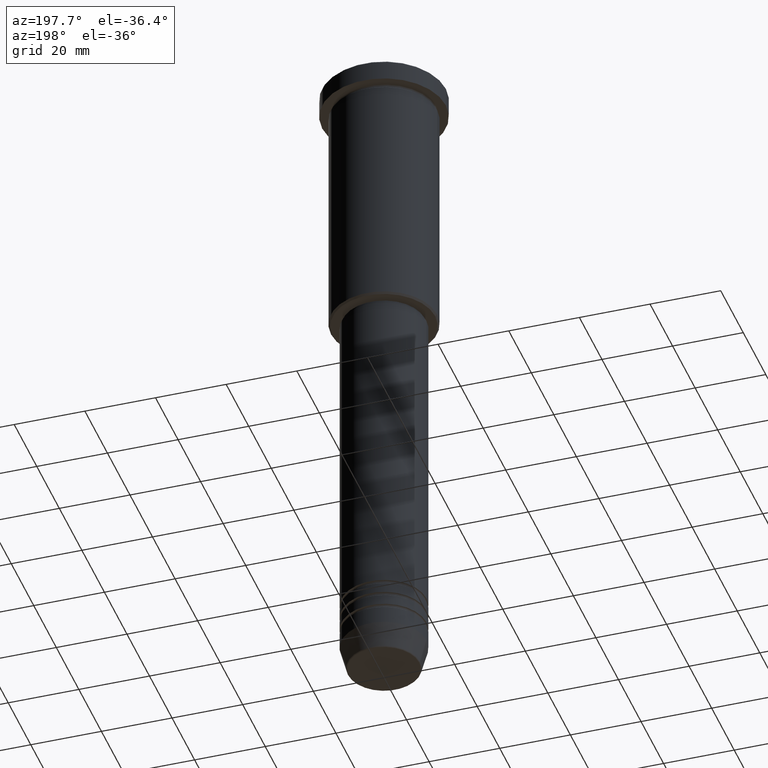
[diagram: clean part render]
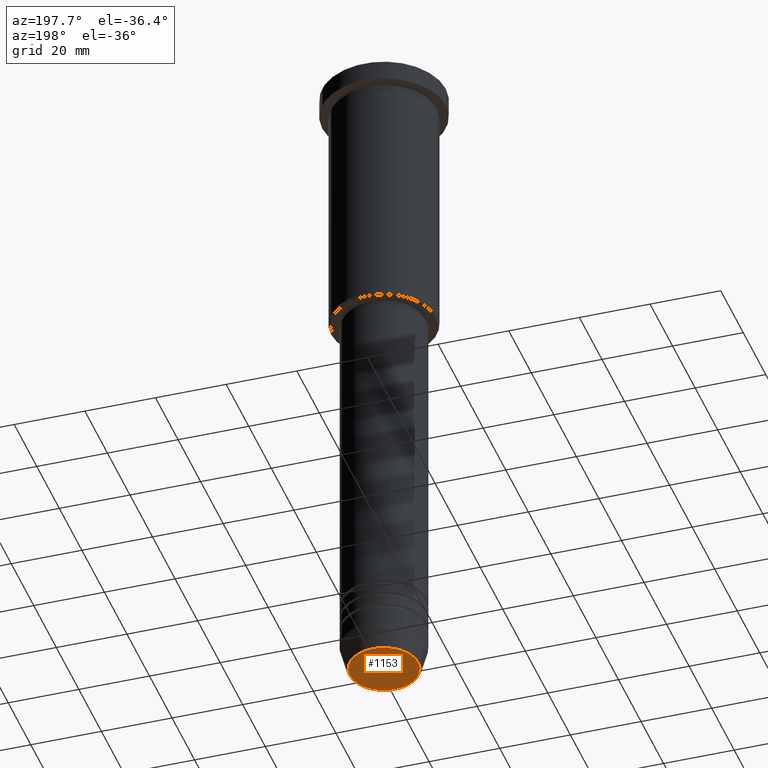
[diagram: same view with one face highlighted and labeled with its STEP entity id]
A machine part, auxiliary view. The second image highlights one B-rep face of the part: STEP entity #1153.
In plain terms, the highlighted planar face has unit normal (0, -0, 1).
Its self-contained STEP definition (entity closure, byte-faithful):
#20 = CARTESIAN_POINT ( 'NONE',  ( -9.740692158992658278, 1.222463696683474999E-15, -191.0000000000000000 ) ) ;
#33 = PLANE ( 'NONE',  #932 ) ;
#65 = CARTESIAN_POINT ( 'NONE',  ( 9.740692158992658278, 0.000000000000000000, -191.0000000000000000 ) ) ;
#96 = DIRECTION ( 'NONE',  ( 1.000000000000000000, 0.000000000000000000, 0.000000000000000000 ) ) ;
#113 = CIRCLE ( 'NONE', #351, 9.740692158992658278 ) ;
#142 = EDGE_CURVE ( 'NONE', #237, #1000, #953, .T. ) ;
#237 = VERTEX_POINT ( 'NONE', #65 ) ;
#304 = FACE_OUTER_BOUND ( 'NONE', #811, .T. ) ;
#320 = DIRECTION ( 'NONE',  ( 1.000000000000000000, 0.000000000000000000, 0.000000000000000000 ) ) ;
#351 = AXIS2_PLACEMENT_3D ( 'NONE', #1118, #913, #96 ) ;
#495 = DIRECTION ( 'NONE',  ( 1.000000000000000000, 0.000000000000000000, 0.000000000000000000 ) ) ;
#576 = DIRECTION ( 'NONE',  ( 0.000000000000000000, -0.000000000000000000, 1.000000000000000000 ) ) ;
#581 = DIRECTION ( 'NONE',  ( 0.000000000000000000, 0.000000000000000000, -1.000000000000000000 ) ) ;
#639 = ORIENTED_EDGE ( 'NONE', *, *, #142, .T. ) ;
#759 = CARTESIAN_POINT ( 'NONE',  ( 0.000000000000000000, 0.000000000000000000, -191.0000000000000000 ) ) ;
#761 = ORIENTED_EDGE ( 'NONE', *, *, #1054, .T. ) ;
#811 = EDGE_LOOP ( 'NONE', ( #639, #761 ) ) ;
#835 = AXIS2_PLACEMENT_3D ( 'NONE', #1035, #581, #495 ) ;
#913 = DIRECTION ( 'NONE',  ( 0.000000000000000000, 0.000000000000000000, -1.000000000000000000 ) ) ;
#932 = AXIS2_PLACEMENT_3D ( 'NONE', #759, #576, #320 ) ;
#953 = CIRCLE ( 'NONE', #835, 9.740692158992658278 ) ;
#1000 = VERTEX_POINT ( 'NONE', #20 ) ;
#1035 = CARTESIAN_POINT ( 'NONE',  ( 0.000000000000000000, 0.000000000000000000, -191.0000000000000000 ) ) ;
#1054 = EDGE_CURVE ( 'NONE', #1000, #237, #113, .T. ) ;
#1118 = CARTESIAN_POINT ( 'NONE',  ( 0.000000000000000000, 0.000000000000000000, -191.0000000000000000 ) ) ;
#1153 = ADVANCED_FACE ( 'NONE', ( #304 ), #33, .F. ) ;